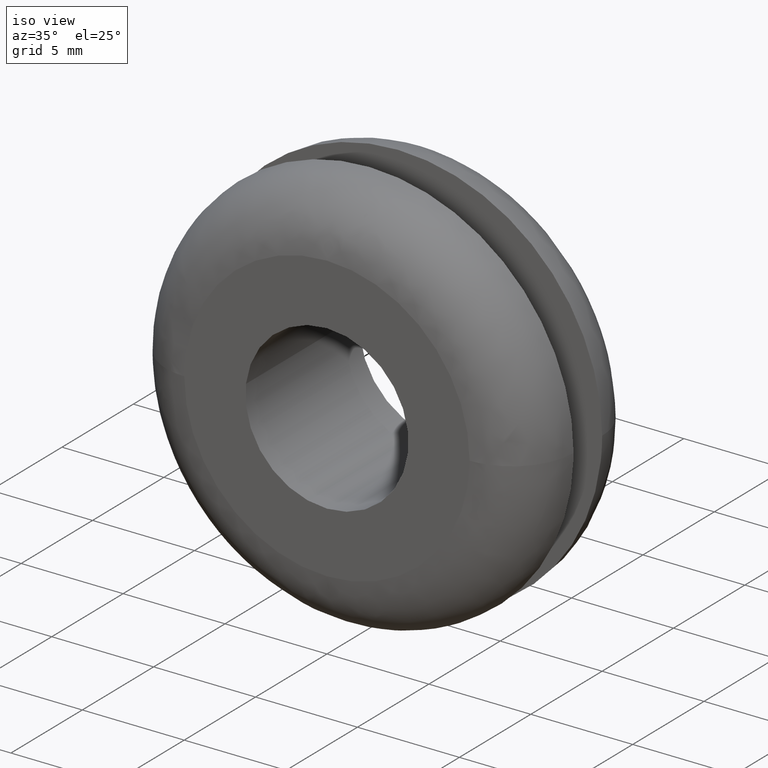
[diagram: clean part render]
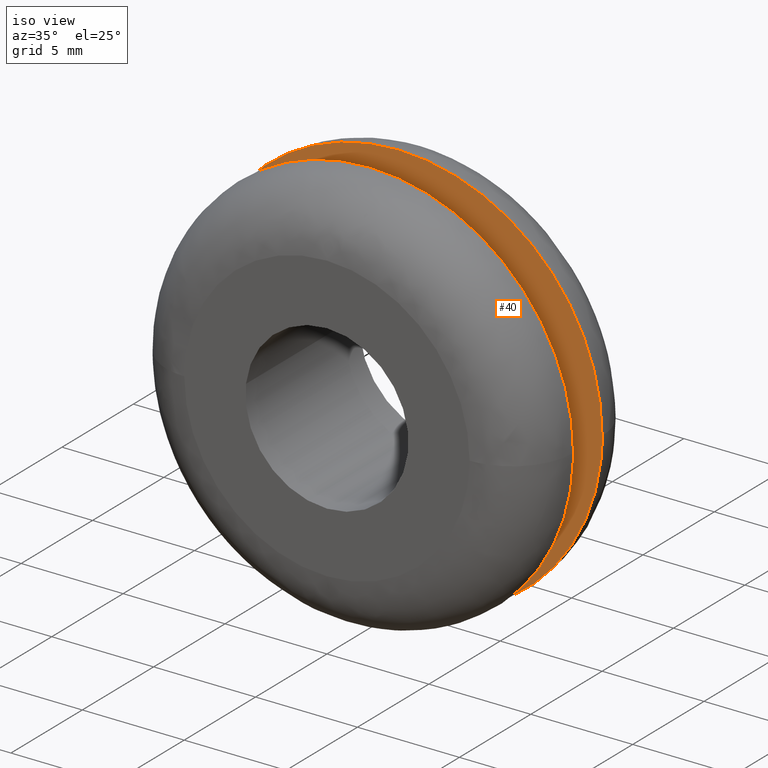
[diagram: same view with one face highlighted and labeled with its STEP entity id]
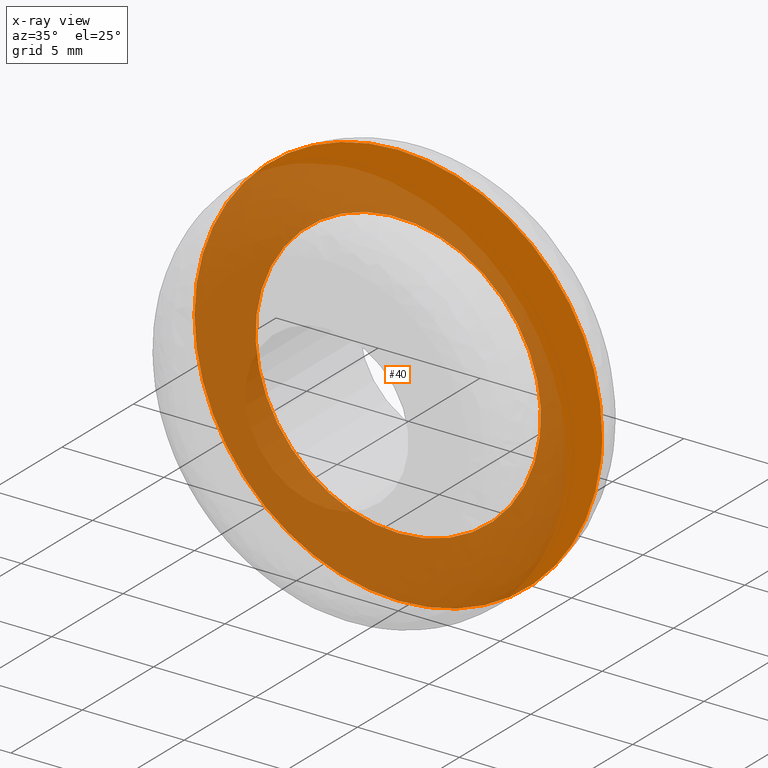
[diagram: x-ray of the same camera — body ghosted, the highlighted face saturated]
A machine part, iso view. The second image highlights one B-rep face of the part: STEP entity #40.
The next image is the same camera in x-ray: the body ghosted, the highlighted face saturated — about 72% of this face is hidden behind the body in this view.
In plain terms, the highlighted planar face has unit normal (0, 1, 0).
Its self-contained STEP definition (entity closure, byte-faithful):
#40=ADVANCED_FACE('',(#53,#54),#52,.F.);
#52=PLANE('',#179);
#53=FACE_OUTER_BOUND('',#180,.T.);
#54=FACE_BOUND('',#181,.T.);
#176=CARTESIAN_POINT('',(-1.21229744099E+001,5.00000000000E+000,-1.20000000000E+001));
#177=DIRECTION('',(0.00000000000E+000,1.00000000000E+000,0.00000000000E+000));
#178=DIRECTION('',(0.00000000000E+000,0.00000000000E+000,1.00000000000E+000));
#179=AXIS2_PLACEMENT_3D('',#176,#177,#178);
#180=EDGE_LOOP('',(#324,#325,#326,#327,#328));
#181=EDGE_LOOP('',(#329,#330,#331));
#324=ORIENTED_EDGE('',*,*,#398,.T.);
#325=ORIENTED_EDGE('',*,*,#399,.T.);
#326=ORIENTED_EDGE('',*,*,#400,.T.);
#327=ORIENTED_EDGE('',*,*,#401,.T.);
#328=ORIENTED_EDGE('',*,*,#402,.T.);
#329=ORIENTED_EDGE('',*,*,#403,.F.);
#330=ORIENTED_EDGE('',*,*,#404,.F.);
#331=ORIENTED_EDGE('',*,*,#405,.F.);
#398=EDGE_CURVE('',#435,#436,#437,.T.);
#399=EDGE_CURVE('',#436,#443,#444,.T.);
#400=EDGE_CURVE('',#443,#450,#451,.T.);
#401=EDGE_CURVE('',#450,#457,#458,.T.);
#402=EDGE_CURVE('',#457,#435,#464,.T.);
#403=EDGE_CURVE('',#470,#471,#472,.T.);
#404=EDGE_CURVE('',#478,#470,#479,.T.);
#405=EDGE_CURVE('',#471,#478,#485,.T.);
#435=VERTEX_POINT('',#686);
#436=VERTEX_POINT('',#687);
#437=CIRCLE('',#691,1.00000000000E+001);
#443=VERTEX_POINT('',#692);
#444=CIRCLE('',#696,1.00000000000E+001);
#450=VERTEX_POINT('',#697);
#451=CIRCLE('',#701,1.00000000000E+001);
#457=VERTEX_POINT('',#702);
#458=CIRCLE('',#706,1.00000000000E+001);
#464=CIRCLE('',#710,1.00000000000E+001);
#470=VERTEX_POINT('',#711);
#471=VERTEX_POINT('',#712);
#472=CIRCLE('',#716,7.00000000000E+000);
#478=VERTEX_POINT('',#717);
#479=CIRCLE('',#721,7.00000000000E+000);
#485=CIRCLE('',#725,7.00000000000E+000);
#686=CARTESIAN_POINT('',(0.00000000000E+000,5.00000000000E+000,-1.00000000000E+001));
#687=CARTESIAN_POINT('',(9.93311709961E+000,4.99999788492E+000,-1.15463617012E+000));
#688=CARTESIAN_POINT('',(-9.10382880193E-013,4.99999894246E+000,-2.81730194729E-012));
#689=DIRECTION('',(-1.18758841895E-007,-1.00000000000E+000,-1.05753828805E-007));
#690=DIRECTION('',(-9.10382880193E-014,-1.05753828805E-007,1.00000000000E+000));
#691=AXIS2_PLACEMENT_3D('',#688,#689,#690);
#692=CARTESIAN_POINT('',(9.99999999999E+000,4.99999800073E+000,1.08765567577E-005));
#693=CARTESIAN_POINT('',(-3.73034936274E-013,4.99999894246E+000,2.71249689376E-012));
#694=DIRECTION('',(-9.41729651498E-008,-1.00000000000E+000,1.05753828768E-007));
#695=DIRECTION('',(-9.93311709961E-001,1.05753828628E-007,1.15463617013E-001));
#696=AXIS2_PLACEMENT_3D('',#693,#694,#695);
#697=CARTESIAN_POINT('',(0.00000000000E+000,5.00000000000E+000,1.00000000000E+001));
#698=CARTESIAN_POINT('',(-3.73034936274E-013,4.99999894246E+000,2.71249689376E-012));
#699=DIRECTION('',(-9.41729651498E-008,-1.00000000000E+000,1.05753828768E-007));
#700=DIRECTION('',(-9.93311709961E-001,1.05753828628E-007,1.15463617013E-001));
#701=AXIS2_PLACEMENT_3D('',#698,#699,#700);
#702=CARTESIAN_POINT('',(-1.00000000000E+001,4.99999795693E+000,1.31552490000E-008));
#703=CARTESIAN_POINT('',(3.32178728968E-013,4.99999897846E+000,1.05870867628E-012));
#704=DIRECTION('',(1.02153652483E-007,-1.00000000000E+000,1.02153652115E-007));
#705=DIRECTION('',(3.32178728968E-014,-1.02153652115E-007,-1.00000000000E+000));
#706=AXIS2_PLACEMENT_3D('',#703,#704,#705);
#707=CARTESIAN_POINT('',(3.29514193709E-013,4.99999897846E+000,-1.07025499574E-012));
#708=DIRECTION('',(1.02153652425E-007,-1.00000000000E+000,-1.02153652680E-007));
#709=DIRECTION('',(1.00000000000E+000,1.02153652559E-007,-1.31563192550E-009));
#710=AXIS2_PLACEMENT_3D('',#707,#708,#709);
#711=CARTESIAN_POINT('',(-6.95106698669E+000,5.00000000000E+000,8.26237100632E-001));
#712=CARTESIAN_POINT('',(-1.11022302463E-015,5.00000000000E+000,-7.00000000000E+000));
#713=CARTESIAN_POINT('',(7.88258347484E-013,5.00000000000E+000,1.73772107814E-012));
#714=DIRECTION('',(-5.91952563662E-016,-1.00000000000E+000,-3.90508886495E-015));
#715=DIRECTION('',(-1.12382325668E-013,3.90508886495E-015,-1.00000000000E+000));
#716=AXIS2_PLACEMENT_3D('',#713,#714,#715);
#717=CARTESIAN_POINT('',(6.95092377624E+000,5.00000000000E+000,-8.27441029240E-001));
#718=CARTESIAN_POINT('',(7.88258347484E-013,5.00000000000E+000,1.73772107814E-012));
#719=DIRECTION('',(-5.91952563662E-016,-1.00000000000E+000,-3.90508886495E-015));
#720=DIRECTION('',(-1.12382325668E-013,3.90508886495E-015,-1.00000000000E+000));
#721=AXIS2_PLACEMENT_3D('',#718,#719,#720);
#722=CARTESIAN_POINT('',(7.88258347484E-013,5.00000000000E+000,1.73772107814E-012));
#723=DIRECTION('',(-5.91952563662E-016,-1.00000000000E+000,-3.90508886495E-015));
#724=DIRECTION('',(-1.12382325668E-013,3.90508886495E-015,-1.00000000000E+000));
#725=AXIS2_PLACEMENT_3D('',#722,#723,#724);